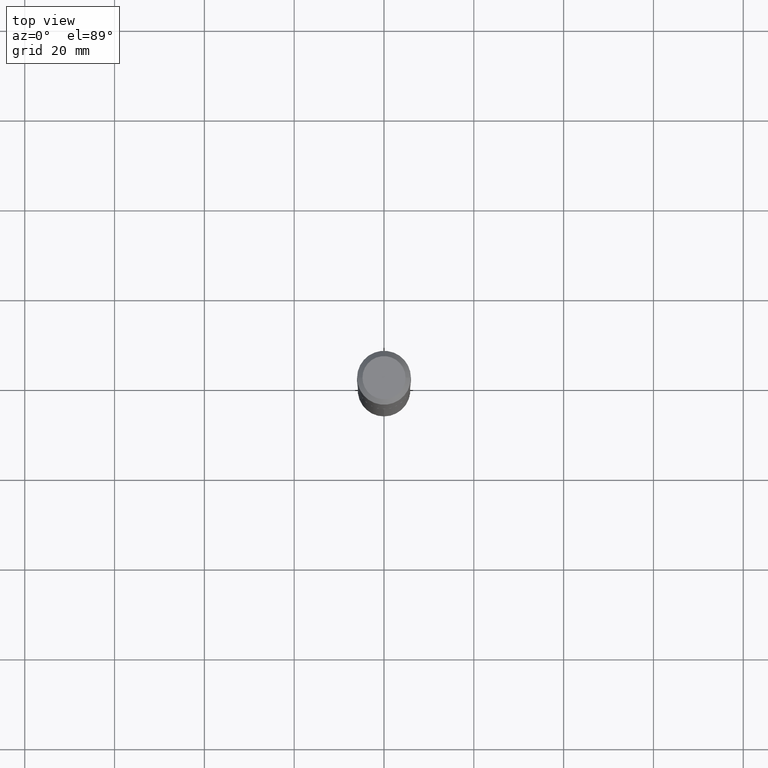
[diagram: clean part render]
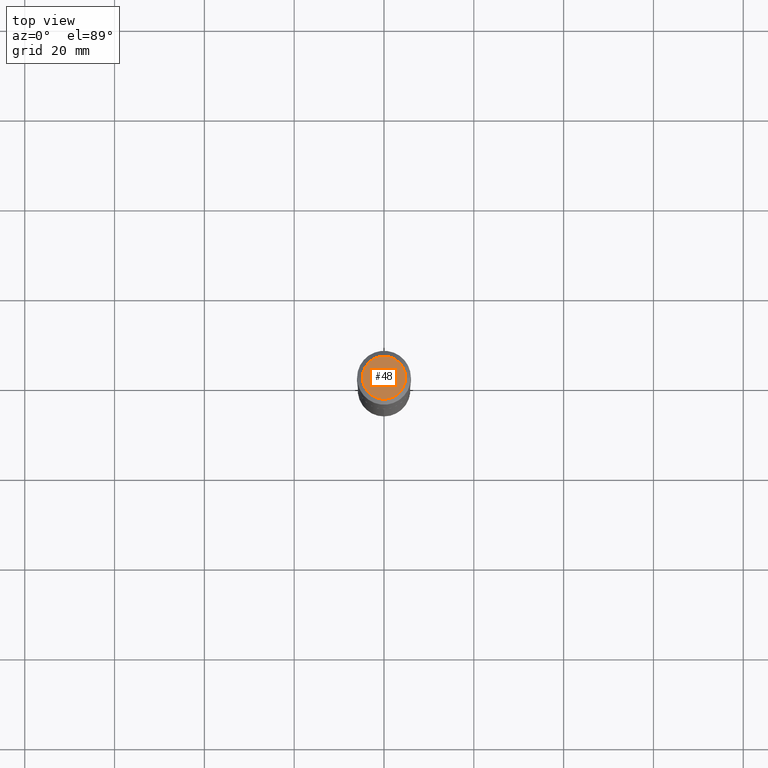
[diagram: same view with one face highlighted and labeled with its STEP entity id]
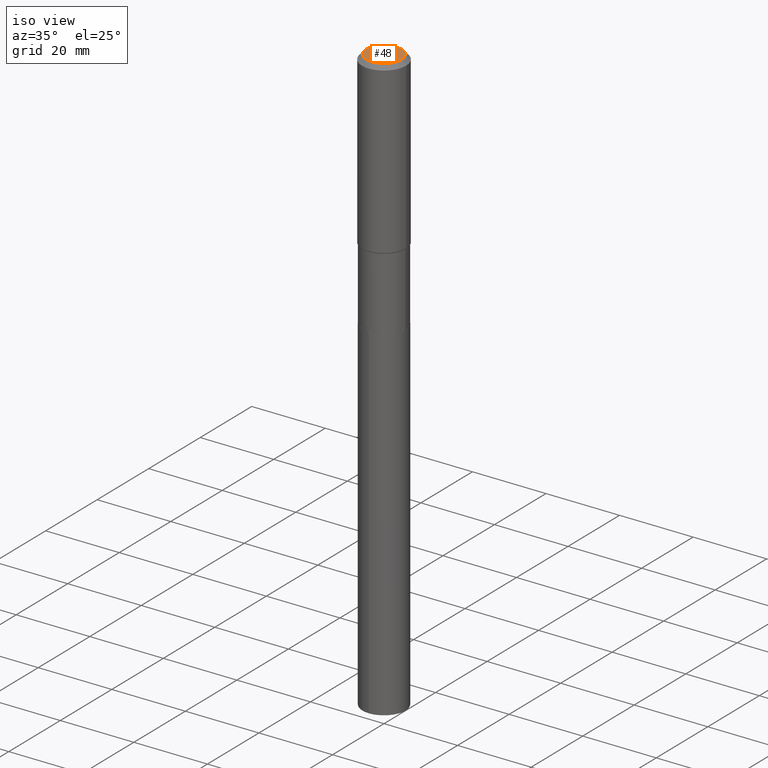
[diagram: same view with one face highlighted and labeled with its STEP entity id]
A machine part, top view. The second image highlights one B-rep face of the part: STEP entity #48.
A second angle (iso view) of the same face is appended — the face is thin or edge-on in the first view.
In plain terms, the highlighted planar face has unit normal (0, -0, -1).
Its self-contained STEP definition (entity closure, byte-faithful):
#2 = AXIS2_PLACEMENT_3D ( 'NONE', #484, #67, #62 ) ;
#27 = EDGE_LOOP ( 'NONE', ( #83, #332 ) ) ;
#48 = ADVANCED_FACE ( 'NONE', ( #149 ), #334, .F. ) ;
#49 = DIRECTION ( 'NONE',  ( -2.445468806185136597E-29, 3.491481338843145583E-15, 1.000000000000000000 ) ) ;
#62 = DIRECTION ( 'NONE',  ( 1.000000000000000000, -6.982962677686266711E-15, 4.876185090822587894E-29 ) ) ;
#67 = DIRECTION ( 'NONE',  ( -2.445468806185136597E-29, 3.491481338843145583E-15, 1.000000000000000000 ) ) ;
#83 = ORIENTED_EDGE ( 'NONE', *, *, #341, .T. ) ;
#112 = DIRECTION ( 'NONE',  ( 2.438088387897960049E-29, -3.491481338843145188E-15, -1.000000000000000000 ) ) ;
#149 = FACE_OUTER_BOUND ( 'NONE', #27, .T. ) ;
#155 = AXIS2_PLACEMENT_3D ( 'NONE', #346, #49, #196 ) ;
#181 = VERTEX_POINT ( 'NONE', #308 ) ;
#193 = EDGE_CURVE ( 'NONE', #181, #440, #275, .T. ) ;
#196 = DIRECTION ( 'NONE',  ( 1.000000000000000000, -6.982962677686266711E-15, 4.876185090822587894E-29 ) ) ;
#206 = AXIS2_PLACEMENT_3D ( 'NONE', #381, #112, #304 ) ;
#254 = CARTESIAN_POINT ( 'NONE',  ( -0.1889600000000000168, 1.401969416799070942E-15, 3.855188123706346622E-18 ) ) ;
#275 = CIRCLE ( 'NONE', #155, 0.1889600000000000168 ) ;
#304 = DIRECTION ( 'NONE',  ( -1.000000000000000000, 6.982962677686265922E-15, -4.876176775795935793E-29 ) ) ;
#308 = CARTESIAN_POINT ( 'NONE',  ( 0.1889600000000000168, -1.540873453589747935E-15, 3.855188123725863225E-18 ) ) ;
#332 = ORIENTED_EDGE ( 'NONE', *, *, #193, .T. ) ;
#334 = PLANE ( 'NONE',  #206 ) ;
#341 = EDGE_CURVE ( 'NONE', #440, #181, #427, .T. ) ;
#346 = CARTESIAN_POINT ( 'NONE',  ( -9.427742298522546243E-47, 1.346031739168365344E-32, 3.855188123715862256E-18 ) ) ;
#381 = CARTESIAN_POINT ( 'NONE',  ( -4.713871149261273121E-47, 6.730158695841826722E-33, 1.927594061857931128E-18 ) ) ;
#427 = CIRCLE ( 'NONE', #2, 0.1889600000000000168 ) ;
#440 = VERTEX_POINT ( 'NONE', #254 ) ;
#484 = CARTESIAN_POINT ( 'NONE',  ( -9.427742298522546243E-47, 1.346031739168365344E-32, 3.855188123715862256E-18 ) ) ;